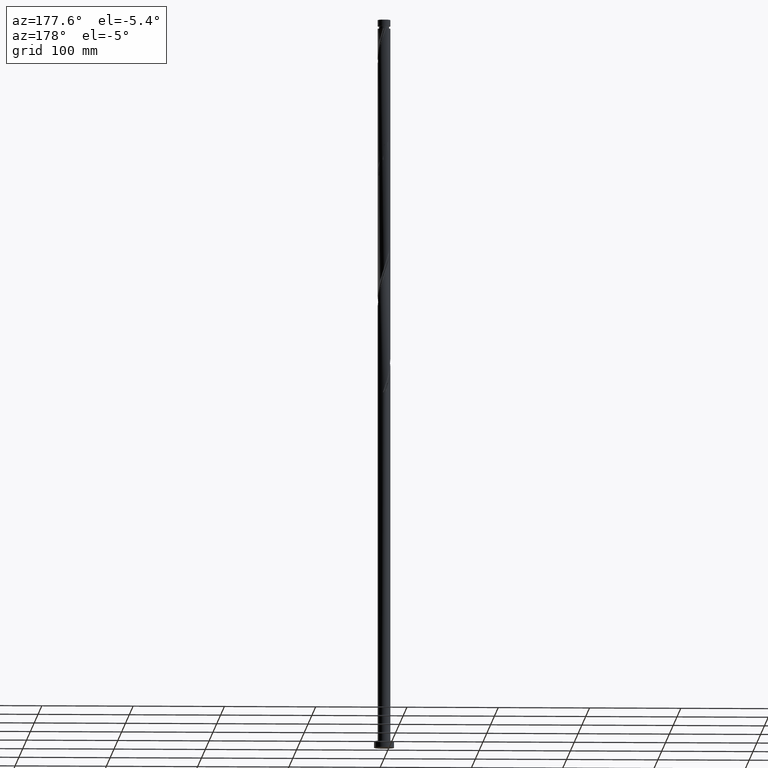
[diagram: clean part render]
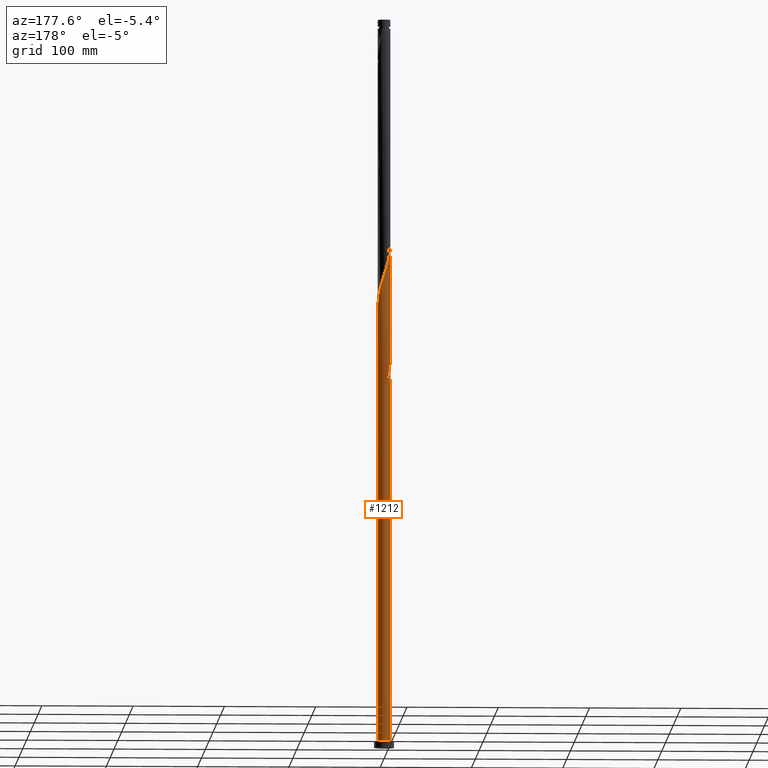
[diagram: same view with one face highlighted and labeled with its STEP entity id]
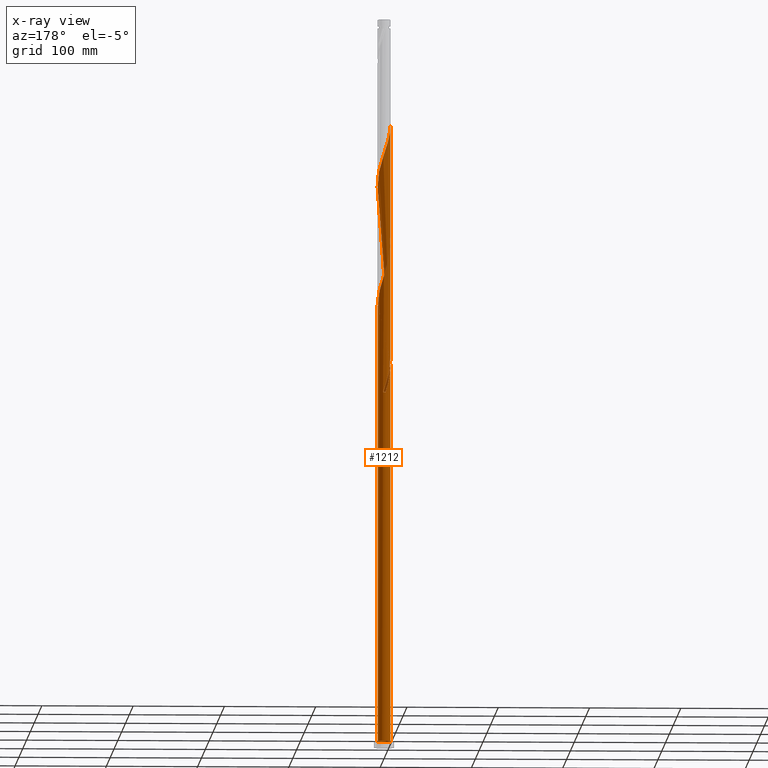
[diagram: x-ray of the same camera — body ghosted, the highlighted face saturated]
A machine part, auxiliary view. The second image highlights one B-rep face of the part: STEP entity #1212.
The next image is the same camera in x-ray: the body ghosted, the highlighted face saturated — about 0% of this face is hidden behind the body in this view.
In plain terms, the highlighted cylindrical surface (bore or boss wall) has radius 7 mm, axis along (-0, -0, -1).
Its self-contained STEP definition (entity closure, byte-faithful):
#10 = CARTESIAN_POINT ( 'NONE',  ( 7.019691716855686714, 0.2457042627692964110, 620.1711586641861231 ) ) ;
#11 = AXIS2_PLACEMENT_3D ( 'NONE', #502, #675, #1535 ) ;
#24 = CARTESIAN_POINT ( 'NONE',  ( 2.039907649032639547, 6.696176280790275825, 646.4869481378706269 ) ) ;
#35 = CARTESIAN_POINT ( 'NONE',  ( 3.044787455224846173, -6.329748157465722613, 462.2764218220810335 ) ) ;
#36 = CARTESIAN_POINT ( 'NONE',  ( -5.722650359351610483, 4.031286750482143688, 414.9080007694495293 ) ) ;
#45 = CARTESIAN_POINT ( 'NONE',  ( 6.992042790319750623, -0.3336729211934446049, 485.0834393659407056 ) ) ;
#53 =( BOUNDED_CURVE ( )  B_SPLINE_CURVE ( 2, ( #1618, #1278, #69, #1419, #418, #2154, #1257, #939, #1793, #1247, #597, #898, #1983, #1288, #1760, #1626, #1770, #1112, #427, #1805, #240, #407, #1443, #1588, #1607, #35, #229, #1268, #919, #1435, #553, #1935, #59, #385, #746, #1077, #218, #906, #45, #1947, #736, #2121, #561, #398, #2131, #470, #616, #642, #1851, #1160, #1502, #1637, #280, #1133, #1146, #482, #2173, #781, #970, #1346, #1516, #1670, #110, #947, #1320, #1307, #98, #606, #90, #1826, #1659, #1470, #819, #1333, #960, #652, #1682, #2034, #2164, #1183, #435, #1297, #260, #2013, #1991, #1491, #121, #2196, #459, #807, #2001, #1815, #2185, #828, #270, #448, #1840, #2024, #1648, #792, #1479, #292, #1172, #629, #306, #981, #993, #132, #2207, #1914, #1728, #171, #365, #183, #1900, #10, #350, #1692, #873, #1052, #2234, #1577, #863, #532, #329, #340, #1565, #1864, #2085, #1195, #24, #1875, #1227, #1555, #1406, #690, #2246, #1395, #1031, #698, #2059, #1886, #156, #196, #710, #1207, #144, #1716, #839, #1740, #1529, #886, #680, #2097, #1361 ),
 .UNSPECIFIED., .F., .T. ) 
 B_SPLINE_CURVE_WITH_KNOTS ( ( 3, 2, 2, 2, 2, 2, 2, 2, 2, 2, 2, 2, 2, 2, 2, 2, 2, 2, 2, 2, 2, 2, 2, 2, 2, 2, 2, 2, 2, 2, 2, 2, 2, 2, 2, 2, 2, 2, 2, 2, 2, 2, 2, 2, 2, 2, 2, 2, 2, 2, 2, 2, 2, 2, 2, 2, 2, 2, 2, 2, 2, 2, 2, 2, 2, 2, 2, 2, 2, 2, 2, 2, 2, 2, 2, 2, 2, 3 ),
 ( 0.05452958095159549795, 0.05921052631578949121, 0.06578947368421050879, 0.07236842105263152636, 0.07894736842105265495, 0.08552631578947367252, 0.09210526315789469010, 0.09868421052631581869, 0.1052631578947368363, 0.1118421052631578538, 0.1184210526315789824, 0.1250000000000000000, 0.1315789473684210176, 0.1381578947368421462, 0.1447368421052631637, 0.1513157894736841813, 0.1578947368421053099, 0.1644736842105263275, 0.1710526315789473450, 0.1776315789473684736, 0.1842105263157894912, 0.1907894736842105088, 0.1973684210526315264, 0.2039473684210526550, 0.2105263157894736725, 0.2171052631578946901, 0.2236842105263158187, 0.2302631578947368363, 0.2368421052631578538, 0.2434210526315789824, 0.2500000000000000000, 0.2565789473684210176, 0.2631578947368421462, 0.2697368421052631637, 0.2763157894736841813, 0.2828947368421053099, 0.2894736842105263275, 0.2960526315789473450, 0.3026315789473684736, 0.3092105263157894912, 0.3157894736842105088, 0.3223684210526315264, 0.3289473684210526550, 0.3355263157894736725, 0.3421052631578946901, 0.3486842105263158187, 0.3552631578947368363, 0.3618421052631578538, 0.3684210526315789824, 0.3750000000000000000, 0.3815789473684210176, 0.3881578947368421462, 0.3947368421052631637, 0.4013157894736841813, 0.4078947368421053099, 0.4144736842105263275, 0.4210526315789473450, 0.4276315789473684736, 0.4342105263157894912, 0.4407894736842105088, 0.4473684210526315264, 0.4539473684210526550, 0.4605263157894736725, 0.4671052631578946901, 0.4736842105263158187, 0.4802631578947368363, 0.4868421052631578538, 0.4934210526315789824, 0.5000000000000000000, 0.5065789473684210176, 0.5131578947368420351, 0.5197368421052631637, 0.5263157894736842923, 0.5328947368421053099, 0.5394736842105263275, 0.5460526315789473450, 0.5526315789473683626, 0.5545295809515957686 ),
 .UNSPECIFIED. ) 
 CURVE ( )  GEOMETRIC_REPRESENTATION_ITEM ( )  RATIONAL_B_SPLINE_CURVE ( ( 0.9078162034606346298, 0.9068816855934418442, 0.9090909090909634616, 0.9059859027333906356, 0.9090909090909634616, 0.9059859027333906356, 0.9090909090909634616, 0.9059859027333906356, 0.9090909090909634616, 0.9059859027333906356, 0.9090909090909634616, 0.9059859027333906356, 0.9090909090909634616, 0.9059859027333906356, 0.9090909090909634616, 0.9059859027333906356, 0.9090909090909634616, 0.9059859027333906356, 0.9090909090909634616, 0.9059859027333906356, 0.9090909090909634616, 0.9059859027333906356, 0.9090909090909634616, 0.9059859027333906356, 0.9090909090909634616, 0.9059859027333906356, 0.9090909090909634616, 0.9059859027333906356, 0.9090909090909634616, 0.9059859027333906356, 0.9090909090909634616, 0.9059859027333906356, 0.9090909090909634616, 0.9059859027333906356, 0.9090909090909634616, 0.9059859027333906356, 0.9090909090909634616, 0.9059859027333906356, 0.9090909090909634616, 0.9059859027333906356, 0.9090909090909634616, 0.9059859027333906356, 0.9090909090909634616, 0.9059859027333906356, 0.9090909090909634616, 0.9059859027333906356, 0.9090909090909634616, 0.9059859027333906356, 0.9090909090909634616, 0.9059859027333906356, 0.9090909090909634616, 0.9059859027333906356, 0.9090909090909634616, 0.9059859027333906356, 0.9090909090909634616, 0.9059859027333906356, 0.9090909090909634616, 0.9059859027333906356, 0.9090909090909634616, 0.9059859027333906356, 0.9090909090909634616, 0.9059859027333906356, 0.9090909090909634616, 0.9059859027333906356, 0.9090909090909634616, 0.9059859027333906356, 0.9090909090909634616, 0.9059859027333906356, 0.9090909090909634616, 0.9059859027333906356, 0.9090909090909634616, 0.9059859027333906356, 0.9090909090909634616, 0.9059859027333906356, 0.9090909090909634616, 0.9059859027333906356, 0.9090909090909634616, 0.9059859027333906356, 0.9090909090909634616, 0.9059859027333906356, 0.9090909090909634616, 0.9059859027333906356, 0.9090909090909634616, 0.9059859027333906356, 0.9090909090909634616, 0.9059859027333906356, 0.9090909090909634616, 0.9059859027333906356, 0.9090909090909634616, 0.9059859027333906356, 0.9090909090909634616, 0.9059859027333906356, 0.9090909090909634616, 0.9059859027333906356, 0.9090909090909634616, 0.9059859027333906356, 0.9090909090909634616, 0.9059859027333906356, 0.9090909090909634616, 0.9059859027333906356, 0.9090909090909634616, 0.9059859027333906356, 0.9090909090909634616, 0.9059859027333906356, 0.9090909090909634616, 0.9059859027333906356, 0.9090909090909634616, 0.9059859027333906356, 0.9090909090909634616, 0.9059859027333906356, 0.9090909090909634616, 0.9059859027333906356, 0.9090909090909634616, 0.9059859027333906356, 0.9090909090909634616, 0.9059859027333906356, 0.9090909090909634616, 0.9059859027333906356, 0.9090909090909634616, 0.9059859027333906356, 0.9090909090909634616, 0.9059859027333906356, 0.9090909090909634616, 0.9059859027333906356, 0.9090909090909634616, 0.9059859027333906356, 0.9090909090909634616, 0.9059859027333906356, 0.9090909090909634616, 0.9059859027333906356, 0.9090909090909634616, 0.9059859027333906356, 0.9090909090909634616, 0.9059859027333906356, 0.9090909090909634616, 0.9059859027333906356, 0.9090909090909634616, 0.9059859027333906356, 0.9090909090909634616, 0.9059859027333906356, 0.9090909090909634616, 0.9059859027333906356, 0.9090909090909634616, 0.9059859027333906356, 0.9090909090909634616, 0.9059859027333906356, 0.9090909090909634616, 0.9059859027333906356, 0.9090909090909634616, 0.9059859027333906356, 0.9090909090909634616, 0.9059859027333906356, 0.9090909090909634616, 0.9081951262309120310, 0.9078162034606345188 ) ) 
 REPRESENTATION_ITEM ( '' )  );
#59 = CARTESIAN_POINT ( 'NONE',  ( 5.990507344429710557, -3.621301113734379129, 474.5571235764671769 ) ) ;
#69 = CARTESIAN_POINT ( 'NONE',  ( -6.951601197859005765, -0.8217303608394779246, 421.9255446290986242 ) ) ;
#90 = CARTESIAN_POINT ( 'NONE',  ( -5.312758059196996285, 4.557916388486903614, 537.7150183133092014 ) ) ;
#94 = ORIENTED_EDGE ( 'NONE', *, *, #290, .F. ) ;
#98 = CARTESIAN_POINT ( 'NONE',  ( -4.490090583436022520, 5.370203585762769904, 534.2062463834846540 ) ) ;
#110 = CARTESIAN_POINT ( 'NONE',  ( -2.503102836793193120, 6.537161171979624541, 527.1887025238355591 ) ) ;
#121 = CARTESIAN_POINT ( 'NONE',  ( -4.981072876368361158, -4.918222544813072084, 569.2939656817302421 ) ) ;
#132 = CARTESIAN_POINT ( 'NONE',  ( 5.690437779000085960, -4.117688704572492142, 606.1360709448880471 ) ) ;
#144 = CARTESIAN_POINT ( 'NONE',  ( -5.990507344429711445, 3.621301113734376020, 674.5571235764671201 ) ) ;
#156 = CARTESIAN_POINT ( 'NONE',  ( -4.490090583436022520, 5.370203585762769904, 667.5395797168177978 ) ) ;
#157 = AXIS2_PLACEMENT_3D ( 'NONE', #1615, #779, #1980 ) ;
#171 = CARTESIAN_POINT ( 'NONE',  ( 6.719125500927755290, -2.046898846357010804, 613.1536148045372556 ) ) ;
#176 = CARTESIAN_POINT ( 'NONE',  ( 0.000000000000000000, 0.000000000000000000, 390.3465972606779815 ) ) ;
#183 = CARTESIAN_POINT ( 'NONE',  ( 6.964393863783810978, -0.9130501051561915604, 616.6623867343618031 ) ) ;
#196 = CARTESIAN_POINT ( 'NONE',  ( -4.935078339393904834, 4.998144072401316862, 669.2939656817299010 ) ) ;
#202 = CARTESIAN_POINT ( 'NONE',  ( -7.000000000000000000, 2.567738559807420566E-15, 427.9318627947997129 ) ) ;
#210 = CARTESIAN_POINT ( 'NONE',  ( -3.544945141351494744, 6.036005628294971004, 397.3641411203267921 ) ) ;
#218 = CARTESIAN_POINT ( 'NONE',  ( 6.841759682355785799, -1.479974475756601349, 481.5746674361161581 ) ) ;
#229 = CARTESIAN_POINT ( 'NONE',  ( 3.544945141351494744, -6.036005628294971892, 464.0308077869934777 ) ) ;
#230 = CARTESIAN_POINT ( 'NONE',  ( -6.721538046192510052, 1.954718980719877486, 421.9255446290986242 ) ) ;
#240 = CARTESIAN_POINT ( 'NONE',  ( 0.2448650581415204308, -6.995715910705745166, 453.5044919975196649 ) ) ;
#247 = CARTESIAN_POINT ( 'NONE',  ( 0.000000000000000000, 0.000000000000000000, 800.0000000000000000 ) ) ;
#250 = EDGE_CURVE ( 'NONE', #469, #542, #1745, .T. ) ;
#251 = CARTESIAN_POINT ( 'NONE',  ( -1.961418218361538512, 6.744574186493524692, 392.1009832255898004 ) ) ;
#260 = CARTESIAN_POINT ( 'NONE',  ( -6.308128858367879843, -3.034387962378323866, 562.2764218220810335 ) ) ;
#270 = CARTESIAN_POINT ( 'NONE',  ( -0.9099315761367696709, -6.940606927837753126, 583.3290534010284318 ) ) ;
#280 = CARTESIAN_POINT ( 'NONE',  ( 3.114240358905258077, 6.269091400431626937, 509.6448428747125945 ) ) ;
#290 = EDGE_CURVE ( 'NONE', #1313, #542, #2007, .T. ) ;
#292 = CARTESIAN_POINT ( 'NONE',  ( 3.044787455224846173, -6.329748157465722613, 595.6097551554144047 ) ) ;
#306 = CARTESIAN_POINT ( 'NONE',  ( 4.490090583436021632, -5.370203585762769904, 600.8729130501511690 ) ) ;
#310 = ORIENTED_EDGE ( 'NONE', *, *, #1198, .T. ) ;
#329 = CARTESIAN_POINT ( 'NONE',  ( 4.981072876368362934, 4.918222544813072084, 635.9606323483969845 ) ) ;
#340 = CARTESIAN_POINT ( 'NONE',  ( 4.573537337246527557, 5.330966010888388951, 637.7150183133089740 ) ) ;
#344 = DIRECTION ( 'NONE',  ( 0.000000000000000000, -5.947623346206196474E-14, -1.000000000000000000 ) ) ;
#350 = CARTESIAN_POINT ( 'NONE',  ( 6.951601197859005765, 0.8217303608394754821, 621.9255446290987948 ) ) ;
#364 = EDGE_CURVE ( 'NONE', #469, #1394, #437, .T. ) ;
#365 = CARTESIAN_POINT ( 'NONE',  ( 6.841759682355785799, -1.479974475756601349, 614.9080007694494725 ) ) ;
#385 = CARTESIAN_POINT ( 'NONE',  ( 6.290576909859332488, -3.124913522896260787, 476.3115095413792233 ) ) ;
#398 = CARTESIAN_POINT ( 'NONE',  ( 6.559565413522718380, 2.511681502530098697, 493.8553691905020742 ) ) ;
#399 = CARTESIAN_POINT ( 'NONE',  ( -3.633712082764800400, 6.011038087053206525, 406.1360709448881607 ) ) ;
#407 = CARTESIAN_POINT ( 'NONE',  ( 0.8245466055370141989, -6.975425813506492823, 455.2588779624319386 ) ) ;
#408 = CARTESIAN_POINT ( 'NONE',  ( -4.103624710005659537, 5.671002048970794185, 407.8904569098003208 ) ) ;
#418 = CARTESIAN_POINT ( 'NONE',  ( -6.721538046192521598, -1.954718980719879262, 425.4343165589232285 ) ) ;
#419 = CARTESIAN_POINT ( 'NONE',  ( -6.992042790319750623, 0.3336729211934454931, 418.4167726992741336 ) ) ;
#427 = CARTESIAN_POINT ( 'NONE',  ( -0.9099315761367696709, -6.940606927837753126, 449.9957200676952880 ) ) ;
#428 = CARTESIAN_POINT ( 'NONE',  ( -1.392982411949275745, 6.860000000000008313, 390.3465972606775267 ) ) ;
#435 = CARTESIAN_POINT ( 'NONE',  ( -6.721538046192521598, -1.954718980719879262, 558.7676498922565997 ) ) ;
#436 = CARTESIAN_POINT ( 'NONE',  ( 1.392982411949278188, 6.859999999999997655, 390.3465972606775267 ) ) ;
#437 =( BOUNDED_CURVE ( )  B_SPLINE_CURVE ( 2, ( #1248, #251, #1279, #940, #210, #1627, #723, #587, #1771, #1420, #1269, #1973, #1960, #1948, #2109, #899, #419, #1937, #1113 ),
 .UNSPECIFIED., .F., .T. ) 
 B_SPLINE_CURVE_WITH_KNOTS ( ( 3, 2, 2, 2, 2, 2, 2, 2, 2, 3 ),
 ( 0.000000000000000000, 0.006578947368421017572, 0.01315789473684214617, 0.01973684210526316374, 0.02631578947368418131, 0.03289473684210530990, 0.03947368421052632748, 0.04605263157894734505, 0.05263157894736847364, 0.05452958095159549795 ),
 .UNSPECIFIED. ) 
 CURVE ( )  GEOMETRIC_REPRESENTATION_ITEM ( )  RATIONAL_B_SPLINE_CURVE ( ( 0.9090909090909634616, 0.9059859027333906356, 0.9090909090909634616, 0.9059859027333906356, 0.9090909090909634616, 0.9059859027333906356, 0.9090909090909634616, 0.9059859027333906356, 0.9090909090909634616, 0.9059859027333906356, 0.9090909090909634616, 0.9059859027333906356, 0.9090909090909634616, 0.9059859027333906356, 0.9090909090909634616, 0.9059859027333906356, 0.9090909090909634616, 0.9081951262309122530, 0.9078162034606346298 ) ) 
 REPRESENTATION_ITEM ( '' )  );
#448 = CARTESIAN_POINT ( 'NONE',  ( -0.3348164892539764459, -7.016006007904995734, 585.0834393659407624 ) ) ;
#459 = CARTESIAN_POINT ( 'NONE',  ( -4.103624710005668419, -5.671002048970803067, 572.8027376115549032 ) ) ;
#469 = VERTEX_POINT ( 'NONE', #428 ) ;
#470 = CARTESIAN_POINT ( 'NONE',  ( 6.056692303213043971, 3.557094422226543706, 497.3641411203265648 ) ) ;
#482 = CARTESIAN_POINT ( 'NONE',  ( 1.485046663019567115, 6.865207847770507854, 514.9080007694494725 ) ) ;
#502 = CARTESIAN_POINT ( 'NONE',  ( 0.000000000000000000, 0.000000000000000000, 7.000000000000000000 ) ) ;
#519 = ORIENTED_EDGE ( 'NONE', *, *, #2064, .F. ) ;
#532 = CARTESIAN_POINT ( 'NONE',  ( 5.388608415490195647, 4.505479078737749887, 634.2062463834844266 ) ) ;
#542 = VERTEX_POINT ( 'NONE', #436 ) ;
#548 = DIRECTION ( 'NONE',  ( -0.000000000000000000, -0.000000000000000000, -1.000000000000000000 ) ) ;
#553 = CARTESIAN_POINT ( 'NONE',  ( 5.312758059196996285, -4.557916388486903614, 471.0483516466425726 ) ) ;
#554 = CARTESIAN_POINT ( 'NONE',  ( -4.573537337246519563, 5.330966010888384510, 409.6448428747127650 ) ) ;
#557 = LINE ( 'NONE', #1631, #1099 ) ;
#561 = CARTESIAN_POINT ( 'NONE',  ( 6.721538046192521598, 1.954718980719880150, 492.1009832255898573 ) ) ;
#562 = CARTESIAN_POINT ( 'NONE',  ( -1.485046663019560009, 6.865207847770499860, 399.1185270852390659 ) ) ;
#570 = CARTESIAN_POINT ( 'NONE',  ( -7.000000000000000000, 2.567738559807420566E-15, 427.9318627947997129 ) ) ;
#576 = CARTESIAN_POINT ( 'NONE',  ( -0.3348164892539722826, 7.016006007904985964, 395.6097551554144616 ) ) ;
#587 = CARTESIAN_POINT ( 'NONE',  ( -4.935078339393904834, 4.998144072401316862, 402.6272990150634428 ) ) ;
#588 = CIRCLE ( 'NONE', #11, 7.000000000000000000 ) ;
#597 = CARTESIAN_POINT ( 'NONE',  ( -4.981072876368361158, -4.918222544813072084, 435.9606323483969845 ) ) ;
#606 = CARTESIAN_POINT ( 'NONE',  ( -4.935078339393904834, 4.998144072401316862, 535.9606323483968708 ) ) ;
#616 = CARTESIAN_POINT ( 'NONE',  ( 5.722650359351619365, 4.031286750482150794, 499.1185270852390090 ) ) ;
#622 = ORIENTED_EDGE ( 'NONE', *, *, #250, .T. ) ;
#629 = CARTESIAN_POINT ( 'NONE',  ( 4.045102827478138430, -5.742263099124219394, 599.1185270852388385 ) ) ;
#642 = CARTESIAN_POINT ( 'NONE',  ( 5.388608415490195647, 4.505479078737749887, 500.8729130501511122 ) ) ;
#652 = CARTESIAN_POINT ( 'NONE',  ( -6.964393863783810978, 0.9130501051561911163, 549.9957200676950606 ) ) ;
#675 = DIRECTION ( 'NONE',  ( 0.000000000000000000, 0.000000000000000000, 1.000000000000000000 ) ) ;
#680 = CARTESIAN_POINT ( 'NONE',  ( -6.992042790319750623, 0.3336729211934454931, 685.0834393659407624 ) ) ;
#690 = CARTESIAN_POINT ( 'NONE',  ( -0.8245466055370130887, 6.975425813506492823, 655.2588779624317112 ) ) ;
#698 = CARTESIAN_POINT ( 'NONE',  ( -3.044787455224847506, 6.329748157465721725, 662.2764218220811472 ) ) ;
#710 = CARTESIAN_POINT ( 'NONE',  ( -5.312758059196996285, 4.557916388486903614, 671.0483516466425726 ) ) ;
#716 = ORIENTED_EDGE ( 'NONE', *, *, #789, .F. ) ;
#723 = CARTESIAN_POINT ( 'NONE',  ( -4.490090583436022520, 5.370203585762769904, 400.8729130501512827 ) ) ;
#736 = CARTESIAN_POINT ( 'NONE',  ( 6.951601197859005765, 0.8217303608394754821, 488.5922112957654235 ) ) ;
#740 = CARTESIAN_POINT ( 'NONE',  ( -7.000000000000000000, 0.000000000000000000, 800.0000000000000000 ) ) ;
#746 = CARTESIAN_POINT ( 'NONE',  ( 6.504851205393546110, -2.585906184626633131, 478.0658955062916107 ) ) ;
#747 = CARTESIAN_POINT ( 'NONE',  ( 0.2448650581415219019, 6.995715910705731844, 393.8553691905021310 ) ) ;
#775 = EDGE_CURVE ( 'NONE', #2102, #1313, #557, .T. ) ;
#779 = DIRECTION ( 'NONE',  ( 0.000000000000000000, 0.000000000000000000, 1.000000000000000000 ) ) ;
#781 = CARTESIAN_POINT ( 'NONE',  ( 0.3348164892539742810, 7.016006007904993957, 518.4167726992739063 ) ) ;
#789 = EDGE_CURVE ( 'NONE', #1394, #1641, #1611, .T. ) ;
#792 = CARTESIAN_POINT ( 'NONE',  ( 1.961418218361535848, -6.744574186493524692, 592.1009832255898573 ) ) ;
#807 = CARTESIAN_POINT ( 'NONE',  ( -3.633712082764806173, -6.011038087053214518, 574.5571235764670064 ) ) ;
#819 = CARTESIAN_POINT ( 'NONE',  ( -6.504851205393546110, 2.585906184626633131, 544.7325621729584100 ) ) ;
#828 = CARTESIAN_POINT ( 'NONE',  ( -1.485046663019566004, -6.865207847770507854, 581.5746674361162150 ) ) ;
#839 = CARTESIAN_POINT ( 'NONE',  ( -6.504851205393546110, 2.585906184626633131, 678.0658955062915538 ) ) ;
#863 = CARTESIAN_POINT ( 'NONE',  ( 5.722650359351619365, 4.031286750482150794, 632.4518604185722097 ) ) ;
#873 = CARTESIAN_POINT ( 'NONE',  ( 6.721538046192521598, 1.954718980719880150, 625.4343165589232285 ) ) ;
#884 = CIRCLE ( 'NONE', #157, 7.000000000000000000 ) ;
#886 = CARTESIAN_POINT ( 'NONE',  ( -6.964393863783810978, 0.9130501051561911163, 683.3290534010283181 ) ) ;
#890 = CARTESIAN_POINT ( 'NONE',  ( -6.999999999999998224, 0.4122904922740496803, 426.6813356806143815 ) ) ;
#898 = CARTESIAN_POINT ( 'NONE',  ( -4.573537337246525780, -5.330966010888390727, 437.7150183133090309 ) ) ;
#899 = CARTESIAN_POINT ( 'NONE',  ( -6.964393863783810978, 0.9130501051561911163, 416.6623867343617462 ) ) ;
#906 = CARTESIAN_POINT ( 'NONE',  ( 6.964393863783810978, -0.9130501051561915604, 483.3290534010283750 ) ) ;
#907 = CARTESIAN_POINT ( 'NONE',  ( -0.9099315761367657851, 6.940606927837740692, 397.3641411203266784 ) ) ;
#917 = VECTOR ( 'NONE', #548, 1000.000000000000000 ) ;
#919 = CARTESIAN_POINT ( 'NONE',  ( 4.490090583436021632, -5.370203585762769904, 467.5395797168179115 ) ) ;
#920 = CARTESIAN_POINT ( 'NONE',  ( -6.308128858367869185, 3.034387962378320314, 418.4167726992740768 ) ) ;
#936 = DIRECTION ( 'NONE',  ( -1.000000000000000000, 0.000000000000000000, 0.000000000000000000 ) ) ;
#939 = CARTESIAN_POINT ( 'NONE',  ( -6.056692303213043083, -3.557094422226544594, 430.6974744536599928 ) ) ;
#940 = CARTESIAN_POINT ( 'NONE',  ( -3.044787455224847506, 6.329748157465721725, 395.6097551554143479 ) ) ;
#947 = CARTESIAN_POINT ( 'NONE',  ( -3.044787455224847506, 6.329748157465721725, 528.9430884887477760 ) ) ;
#958 = DIRECTION ( 'NONE',  ( -0.000000000000000000, -0.000000000000000000, -1.000000000000000000 ) ) ;
#960 = CARTESIAN_POINT ( 'NONE',  ( -6.841759682355785799, 1.479974475756599572, 548.2413341027829574 ) ) ;
#964 = ORIENTED_EDGE ( 'NONE', *, *, #364, .F. ) ;
#970 = CARTESIAN_POINT ( 'NONE',  ( -0.2448650581415163785, 6.995715910705745166, 520.1711586641863505 ) ) ;
#981 = CARTESIAN_POINT ( 'NONE',  ( 4.935078339393903946, -4.998144072401320415, 602.6272990150634996 ) ) ;
#993 = CARTESIAN_POINT ( 'NONE',  ( 5.312758059196996285, -4.557916388486903614, 604.3816849799758302 ) ) ;
#1023 = CARTESIAN_POINT ( 'NONE',  ( 7.000000000000000000, 0.000000000000000000, 7.000000000000000000 ) ) ;
#1031 = CARTESIAN_POINT ( 'NONE',  ( -2.503102836793193120, 6.537161171979624541, 660.5220358571688166 ) ) ;
#1052 = CARTESIAN_POINT ( 'NONE',  ( 6.559565413522718380, 2.511681502530098697, 627.1887025238353317 ) ) ;
#1068 = CARTESIAN_POINT ( 'NONE',  ( -5.388608415490185877, 4.505479078737748999, 413.1536148045373693 ) ) ;
#1077 = CARTESIAN_POINT ( 'NONE',  ( 6.719125500927755290, -2.046898846357010804, 479.8202814712038276 ) ) ;
#1096 = EDGE_CURVE ( 'NONE', #1641, #1152, #588, .T. ) ;
#1099 = VECTOR ( 'NONE', #1412, 1000.000000000000000 ) ;
#1103 = CARTESIAN_POINT ( 'NONE',  ( 0.8245466055370164193, 6.975425813506482164, 392.1009832255899141 ) ) ;
#1112 = CARTESIAN_POINT ( 'NONE',  ( -1.485046663019566004, -6.865207847770507854, 448.2413341027827869 ) ) ;
#1113 = CARTESIAN_POINT ( 'NONE',  ( -7.000000000000011546, -4.926475143816528408E-16, 419.4279983932220262 ) ) ;
#1131 = CYLINDRICAL_SURFACE ( 'NONE', #1929, 7.000000000000000000 ) ;
#1133 = CARTESIAN_POINT ( 'NONE',  ( 2.594768635045706429, 6.527144713810041132, 511.3992288396249819 ) ) ;
#1146 = CARTESIAN_POINT ( 'NONE',  ( 2.039907649032639547, 6.696176280790275825, 513.1536148045373693 ) ) ;
#1152 = VERTEX_POINT ( 'NONE', #1023 ) ;
#1160 = CARTESIAN_POINT ( 'NONE',  ( 4.573537337246527557, 5.330966010888388951, 504.3816849799756596 ) ) ;
#1172 = CARTESIAN_POINT ( 'NONE',  ( 3.544945141351494744, -6.036005628294971892, 597.3641411203267353 ) ) ;
#1183 = CARTESIAN_POINT ( 'NONE',  ( -6.883510678862323928, -1.397756458909655164, 557.0132639273440418 ) ) ;
#1195 = CARTESIAN_POINT ( 'NONE',  ( 2.594768635045706429, 6.527144713810041132, 644.7325621729580689 ) ) ;
#1198 = EDGE_CURVE ( 'NONE', #1152, #1641, #884, .T. ) ;
#1207 = CARTESIAN_POINT ( 'NONE',  ( -5.690437779000086849, 4.117688704572491254, 672.8027376115549032 ) ) ;
#1212 = ADVANCED_FACE ( 'NONE', ( #1604 ), #1131, .T. ) ;
#1219 = CARTESIAN_POINT ( 'NONE',  ( -7.000000000000011546, 2.328879158895086157E-15, 686.0946650598888255 ) ) ;
#1227 = CARTESIAN_POINT ( 'NONE',  ( 0.9099315761367704480, 6.940606927837753126, 649.9957200676952880 ) ) ;
#1238 = CARTESIAN_POINT ( 'NONE',  ( -7.000000000000000000, 0.000000000000000000, 7.000000000000000000 ) ) ;
#1247 = CARTESIAN_POINT ( 'NONE',  ( -5.388608415490194758, -4.505479078737752552, 434.2062463834845403 ) ) ;
#1248 = CARTESIAN_POINT ( 'NONE',  ( -1.392982411949275745, 6.860000000000007425, 390.3465972606775267 ) ) ;
#1257 = CARTESIAN_POINT ( 'NONE',  ( -6.308128858367879843, -3.034387962378323866, 428.9430884887477191 ) ) ;
#1268 = CARTESIAN_POINT ( 'NONE',  ( 4.045102827478138430, -5.742263099124219394, 465.7851937519054673 ) ) ;
#1269 = CARTESIAN_POINT ( 'NONE',  ( -5.990507344429711445, 3.621301113734376020, 407.8904569098004345 ) ) ;
#1278 = CARTESIAN_POINT ( 'NONE',  ( -7.000000000000009770, -0.4122904922740340261, 420.6785255074073575 ) ) ;
#1279 = CARTESIAN_POINT ( 'NONE',  ( -2.503102836793193120, 6.537161171979624541, 393.8553691905021310 ) ) ;
#1288 = CARTESIAN_POINT ( 'NONE',  ( -3.633712082764806173, -6.011038087053214518, 441.2237902431336352 ) ) ;
#1297 = CARTESIAN_POINT ( 'NONE',  ( -6.559565413522717492, -2.511681502530101806, 560.5220358571688166 ) ) ;
#1307 = CARTESIAN_POINT ( 'NONE',  ( -4.045102827478140206, 5.742263099124218506, 532.4518604185724371 ) ) ;
#1313 = VERTEX_POINT ( 'NONE', #570 ) ;
#1320 = CARTESIAN_POINT ( 'NONE',  ( -3.544945141351494744, 6.036005628294971004, 530.6974744536599928 ) ) ;
#1333 = CARTESIAN_POINT ( 'NONE',  ( -6.719125500927757955, 2.046898846357006363, 546.4869481378706269 ) ) ;
#1346 = CARTESIAN_POINT ( 'NONE',  ( -0.8245466055370130887, 6.975425813506492823, 521.9255446290985674 ) ) ;
#1361 = CARTESIAN_POINT ( 'NONE',  ( -7.000000000000011546, 2.328879158895086157E-15, 686.0946650598888255 ) ) ;
#1394 = VERTEX_POINT ( 'NONE', #1915 ) ;
#1395 = CARTESIAN_POINT ( 'NONE',  ( -1.961418218361538512, 6.744574186493524692, 658.7676498922564861 ) ) ;
#1405 = ORIENTED_EDGE ( 'NONE', *, *, #1096, .T. ) ;
#1406 = CARTESIAN_POINT ( 'NONE',  ( -0.2448650581415163785, 6.995715910705745166, 653.5044919975194944 ) ) ;
#1412 = DIRECTION ( 'NONE',  ( -0.000000000000000000, -0.000000000000000000, -1.000000000000000000 ) ) ;
#1419 = CARTESIAN_POINT ( 'NONE',  ( -6.883510678862323928, -1.397756458909655164, 423.6799305940108411 ) ) ;
#1420 = CARTESIAN_POINT ( 'NONE',  ( -5.690437779000086849, 4.117688704572491254, 406.1360709448880471 ) ) ;
#1427 = AXIS2_PLACEMENT_3D ( 'NONE', #176, #344, #2077 ) ;
#1428 = EDGE_LOOP ( 'NONE', ( #1669, #519, #1913, #1405, #310, #716, #964, #622, #94 ) ) ;
#1435 = CARTESIAN_POINT ( 'NONE',  ( 4.935078339393903946, -4.998144072401320415, 469.2939656817300715 ) ) ;
#1436 = CARTESIAN_POINT ( 'NONE',  ( -6.056692303213034201, 3.557094422226541486, 416.6623867343618599 ) ) ;
#1443 = CARTESIAN_POINT ( 'NONE',  ( 1.392982411949276633, -6.860000000000007425, 457.0132639273443260 ) ) ;
#1444 = CARTESIAN_POINT ( 'NONE',  ( -4.981072876368351388, 4.918222544813064978, 411.3992288396249251 ) ) ;
#1470 = CARTESIAN_POINT ( 'NONE',  ( -6.290576909859333377, 3.124913522896260343, 542.9781762080459657 ) ) ;
#1479 = CARTESIAN_POINT ( 'NONE',  ( 2.503102836793192232, -6.537161171979625429, 593.8553691905023015 ) ) ;
#1491 = CARTESIAN_POINT ( 'NONE',  ( -5.388608415490194758, -4.505479078737752552, 567.5395797168180252 ) ) ;
#1502 = CARTESIAN_POINT ( 'NONE',  ( 4.103624710005671972, 5.671002048970801290, 506.1360709448881039 ) ) ;
#1516 = CARTESIAN_POINT ( 'NONE',  ( -1.392982411949276189, 6.860000000000007425, 523.6799305940110116 ) ) ;
#1529 = CARTESIAN_POINT ( 'NONE',  ( -6.841759682355785799, 1.479974475756599572, 681.5746674361162150 ) ) ;
#1535 = DIRECTION ( 'NONE',  ( 1.000000000000000000, 0.000000000000000000, 0.000000000000000000 ) ) ;
#1555 = CARTESIAN_POINT ( 'NONE',  ( 0.3348164892539742810, 7.016006007904993957, 651.7501060326071638 ) ) ;
#1565 = CARTESIAN_POINT ( 'NONE',  ( 4.103624710005671972, 5.671002048970801290, 639.4694042782215320 ) ) ;
#1577 = CARTESIAN_POINT ( 'NONE',  ( 6.056692303213043971, 3.557094422226543706, 630.6974744536598791 ) ) ;
#1580 = CARTESIAN_POINT ( 'NONE',  ( -6.951601197858994219, 0.8217303608394785908, 425.4343165589230580 ) ) ;
#1588 = CARTESIAN_POINT ( 'NONE',  ( 1.961418218361535848, -6.744574186493524692, 458.7676498922563724 ) ) ;
#1589 = CARTESIAN_POINT ( 'NONE',  ( -6.883510678862315935, 1.397756458909655386, 423.6799305940109548 ) ) ;
#1604 = FACE_OUTER_BOUND ( 'NONE', #1428, .T. ) ;
#1607 = CARTESIAN_POINT ( 'NONE',  ( 2.503102836793192232, -6.537161171979625429, 460.5220358571688166 ) ) ;
#1608 = CARTESIAN_POINT ( 'NONE',  ( 1.392982411949278188, 6.859999999999997655, 390.3465972606775267 ) ) ;
#1611 = LINE ( 'NONE', #740, #917 ) ;
#1615 = CARTESIAN_POINT ( 'NONE',  ( 0.000000000000000000, 0.000000000000000000, 7.000000000000000000 ) ) ;
#1618 = CARTESIAN_POINT ( 'NONE',  ( -7.000000000000011546, -4.926475143816528408E-16, 419.4279983932220262 ) ) ;
#1619 = CARTESIAN_POINT ( 'NONE',  ( -2.594768635045700655, 6.527144713810034915, 402.6272990150637270 ) ) ;
#1626 = CARTESIAN_POINT ( 'NONE',  ( -2.594768635045705540, -6.527144713810041132, 444.7325621729581826 ) ) ;
#1627 = CARTESIAN_POINT ( 'NONE',  ( -4.045102827478140206, 5.742263099124218506, 399.1185270852390090 ) ) ;
#1631 = CARTESIAN_POINT ( 'NONE',  ( -7.000000000000000000, 0.000000000000000000, 800.0000000000000000 ) ) ;
#1637 = CARTESIAN_POINT ( 'NONE',  ( 3.633712082764810170, 6.011038087053212742, 507.8904569098002639 ) ) ;
#1641 = VERTEX_POINT ( 'NONE', #1238 ) ;
#1648 = CARTESIAN_POINT ( 'NONE',  ( 1.392982411949276633, -6.860000000000007425, 590.3465972606776404 ) ) ;
#1659 = CARTESIAN_POINT ( 'NONE',  ( -5.990507344429711445, 3.621301113734376020, 541.2237902431338625 ) ) ;
#1669 = ORIENTED_EDGE ( 'NONE', *, *, #775, .F. ) ;
#1670 = CARTESIAN_POINT ( 'NONE',  ( -1.961418218361538512, 6.744574186493524692, 525.4343165589232285 ) ) ;
#1682 = CARTESIAN_POINT ( 'NONE',  ( -6.992042790319750623, 0.3336729211934454931, 551.7501060326071638 ) ) ;
#1692 = CARTESIAN_POINT ( 'NONE',  ( 6.883510678862323928, 1.397756458909654498, 623.6799305940107843 ) ) ;
#1716 = CARTESIAN_POINT ( 'NONE',  ( -6.290576909859333377, 3.124913522896260343, 676.3115095413792233 ) ) ;
#1728 = CARTESIAN_POINT ( 'NONE',  ( 6.504851205393546110, -2.585906184626633131, 611.3992288396250387 ) ) ;
#1740 = CARTESIAN_POINT ( 'NONE',  ( -6.719125500927757955, 2.046898846357006363, 679.8202814712038844 ) ) ;
#1745 = CIRCLE ( 'NONE', #1427, 7.000000000000000000 ) ;
#1751 = CARTESIAN_POINT ( 'NONE',  ( -2.039907649032629777, 6.696176280790267832, 400.8729130501513396 ) ) ;
#1760 = CARTESIAN_POINT ( 'NONE',  ( -3.114240358905257189, -6.269091400431627825, 442.9781762080459657 ) ) ;
#1770 = CARTESIAN_POINT ( 'NONE',  ( -2.039907649032636439, -6.696176280790276714, 446.4869481378705700 ) ) ;
#1771 = CARTESIAN_POINT ( 'NONE',  ( -5.312758059196996285, 4.557916388486903614, 404.3816849799757733 ) ) ;
#1783 = CARTESIAN_POINT ( 'NONE',  ( -6.559565413522707722, 2.511681502530100918, 420.1711586641864073 ) ) ;
#1793 = CARTESIAN_POINT ( 'NONE',  ( -5.722650359351620253, -4.031286750482149017, 432.4518604185723234 ) ) ;
#1805 = CARTESIAN_POINT ( 'NONE',  ( -0.3348164892539764459, -7.016006007904995734, 451.7501060326072775 ) ) ;
#1815 = CARTESIAN_POINT ( 'NONE',  ( -2.594768635045705540, -6.527144713810041132, 578.0658955062915538 ) ) ;
#1826 = CARTESIAN_POINT ( 'NONE',  ( -5.690437779000086849, 4.117688704572491254, 539.4694042782214183 ) ) ;
#1840 = CARTESIAN_POINT ( 'NONE',  ( 0.2448650581415204308, -6.995715910705745166, 586.8378253308530930 ) ) ;
#1851 = CARTESIAN_POINT ( 'NONE',  ( 4.981072876368362934, 4.918222544813072084, 502.6272990150636701 ) ) ;
#1864 = CARTESIAN_POINT ( 'NONE',  ( 3.633712082764810170, 6.011038087053212742, 641.2237902431337488 ) ) ;
#1875 = CARTESIAN_POINT ( 'NONE',  ( 1.485046663019567115, 6.865207847770507854, 648.2413341027826164 ) ) ;
#1886 = CARTESIAN_POINT ( 'NONE',  ( -4.045102827478140206, 5.742263099124218506, 665.7851937519055809 ) ) ;
#1900 = CARTESIAN_POINT ( 'NONE',  ( 6.992042790319750623, -0.3336729211934446049, 618.4167726992742473 ) ) ;
#1913 = ORIENTED_EDGE ( 'NONE', *, *, #789, .T. ) ;
#1914 = CARTESIAN_POINT ( 'NONE',  ( 6.290576909859332488, -3.124913522896260787, 609.6448428747127082 ) ) ;
#1915 = CARTESIAN_POINT ( 'NONE',  ( -7.000000000000011546, -4.926475143816528408E-16, 419.4279983932220262 ) ) ;
#1929 = AXIS2_PLACEMENT_3D ( 'NONE', #247, #958, #936 ) ;
#1935 = CARTESIAN_POINT ( 'NONE',  ( 5.690437779000085960, -4.117688704572492142, 472.8027376115547327 ) ) ;
#1937 = CARTESIAN_POINT ( 'NONE',  ( -7.000000000000010658, 0.1669313397161787671, 418.9216753747820121 ) ) ;
#1947 = CARTESIAN_POINT ( 'NONE',  ( 7.019691716855686714, 0.2457042627692964110, 486.8378253308529224 ) ) ;
#1948 = CARTESIAN_POINT ( 'NONE',  ( -6.719125500927757955, 2.046898846357006363, 413.1536148045371419 ) ) ;
#1960 = CARTESIAN_POINT ( 'NONE',  ( -6.504851205393546110, 2.585906184626633131, 411.3992288396250387 ) ) ;
#1973 = CARTESIAN_POINT ( 'NONE',  ( -6.290576909859333377, 3.124913522896260343, 409.6448428747125945 ) ) ;
#1980 = DIRECTION ( 'NONE',  ( 1.000000000000000000, 0.000000000000000000, 0.000000000000000000 ) ) ;
#1983 = CARTESIAN_POINT ( 'NONE',  ( -4.103624710005668419, -5.671002048970803067, 439.4694042782214183 ) ) ;
#1991 = CARTESIAN_POINT ( 'NONE',  ( -5.722650359351620253, -4.031286750482149017, 565.7851937519055809 ) ) ;
#2001 = CARTESIAN_POINT ( 'NONE',  ( -3.114240358905257189, -6.269091400431627825, 576.3115095413793370 ) ) ;
#2007 =( BOUNDED_CURVE ( )  B_SPLINE_CURVE ( 2, ( #202, #890, #1580, #1589, #230, #1783, #920, #1436, #36, #1068, #1444, #554, #408, #399, #2144, #1619, #1751, #562, #907, #576, #747, #1103, #1608 ),
 .UNSPECIFIED., .F., .T. ) 
 B_SPLINE_CURVE_WITH_KNOTS ( ( 3, 2, 2, 2, 2, 2, 2, 2, 2, 2, 2, 3 ),
 ( 0.9295295809515956575, 0.9342105263157894912, 0.9407894736842105088, 0.9473684210526315264, 0.9539473684210526550, 0.9605263157894736725, 0.9671052631578946901, 0.9736842105263158187, 0.9802631578947368363, 0.9868421052631578538, 0.9934210526315789824, 1.000000000000000000 ),
 .UNSPECIFIED. ) 
 CURVE ( )  GEOMETRIC_REPRESENTATION_ITEM ( )  RATIONAL_B_SPLINE_CURVE ( ( 0.9078162034606285236, 0.9068816855934357379, 0.9090909090909574664, 0.9059859027333843073, 0.9090909090909574664, 0.9059859027333843073, 0.9090909090909574664, 0.9059859027333843073, 0.9090909090909574664, 0.9059859027333843073, 0.9090909090909574664, 0.9059859027333843073, 0.9090909090909574664, 0.9059859027333843073, 0.9090909090909574664, 0.9059859027333843073, 0.9090909090909574664, 0.9059859027333843073, 0.9090909090909574664, 0.9059859027333843073, 0.9090909090909574664, 0.9059859027333843073, 0.9090909090909574664 ) ) 
 REPRESENTATION_ITEM ( '' )  );
#2013 = CARTESIAN_POINT ( 'NONE',  ( -6.056692303213043083, -3.557094422226544594, 564.0308077869933641 ) ) ;
#2024 = CARTESIAN_POINT ( 'NONE',  ( 0.8245466055370141989, -6.975425813506492823, 588.5922112957653098 ) ) ;
#2034 = CARTESIAN_POINT ( 'NONE',  ( -7.019691716855684938, -0.2457042627693002135, 553.5044919975196080 ) ) ;
#2059 = CARTESIAN_POINT ( 'NONE',  ( -3.544945141351494744, 6.036005628294971004, 664.0308077869933641 ) ) ;
#2064 = EDGE_CURVE ( 'NONE', #1394, #2102, #53, .T. ) ;
#2077 = DIRECTION ( 'NONE',  ( 0.000000000000000000, 1.000000000000000000, -6.344131569286608983E-14 ) ) ;
#2085 = CARTESIAN_POINT ( 'NONE',  ( 3.114240358905258077, 6.269091400431626937, 642.9781762080459657 ) ) ;
#2097 = CARTESIAN_POINT ( 'NONE',  ( -7.000000000000012434, 0.1669313397161480417, 685.5883420414486409 ) ) ;
#2102 = VERTEX_POINT ( 'NONE', #1219 ) ;
#2109 = CARTESIAN_POINT ( 'NONE',  ( -6.841759682355785799, 1.479974475756599572, 414.9080007694494725 ) ) ;
#2121 = CARTESIAN_POINT ( 'NONE',  ( 6.883510678862323928, 1.397756458909654498, 490.3465972606774699 ) ) ;
#2131 = CARTESIAN_POINT ( 'NONE',  ( 6.308128858367881620, 3.034387962378322090, 495.6097551554144616 ) ) ;
#2144 = CARTESIAN_POINT ( 'NONE',  ( -3.114240358905250527, 6.269091400431618943, 404.3816849799758302 ) ) ;
#2154 = CARTESIAN_POINT ( 'NONE',  ( -6.559565413522717492, -2.511681502530101806, 427.1887025238352749 ) ) ;
#2164 = CARTESIAN_POINT ( 'NONE',  ( -6.951601197859005765, -0.8217303608394779246, 555.2588779624318249 ) ) ;
#2173 = CARTESIAN_POINT ( 'NONE',  ( 0.9099315761367704480, 6.940606927837753126, 516.6623867343618031 ) ) ;
#2185 = CARTESIAN_POINT ( 'NONE',  ( -2.039907649032636439, -6.696176280790276714, 579.8202814712036570 ) ) ;
#2196 = CARTESIAN_POINT ( 'NONE',  ( -4.573537337246525780, -5.330966010888390727, 571.0483516466422316 ) ) ;
#2207 = CARTESIAN_POINT ( 'NONE',  ( 5.990507344429710557, -3.621301113734379129, 607.8904569098003776 ) ) ;
#2234 = CARTESIAN_POINT ( 'NONE',  ( 6.308128858367881620, 3.034387962378322090, 628.9430884887475486 ) ) ;
#2246 = CARTESIAN_POINT ( 'NONE',  ( -1.392982411949276189, 6.860000000000007425, 657.0132639273440418 ) ) ;